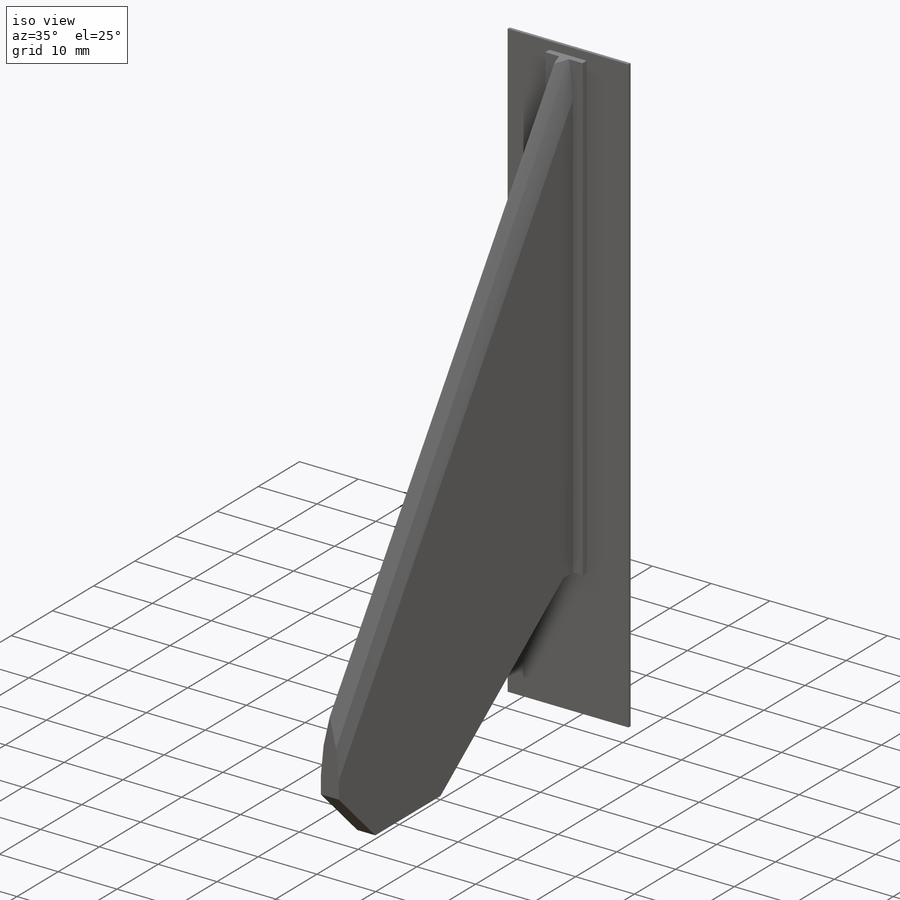
[diagram: iso view]
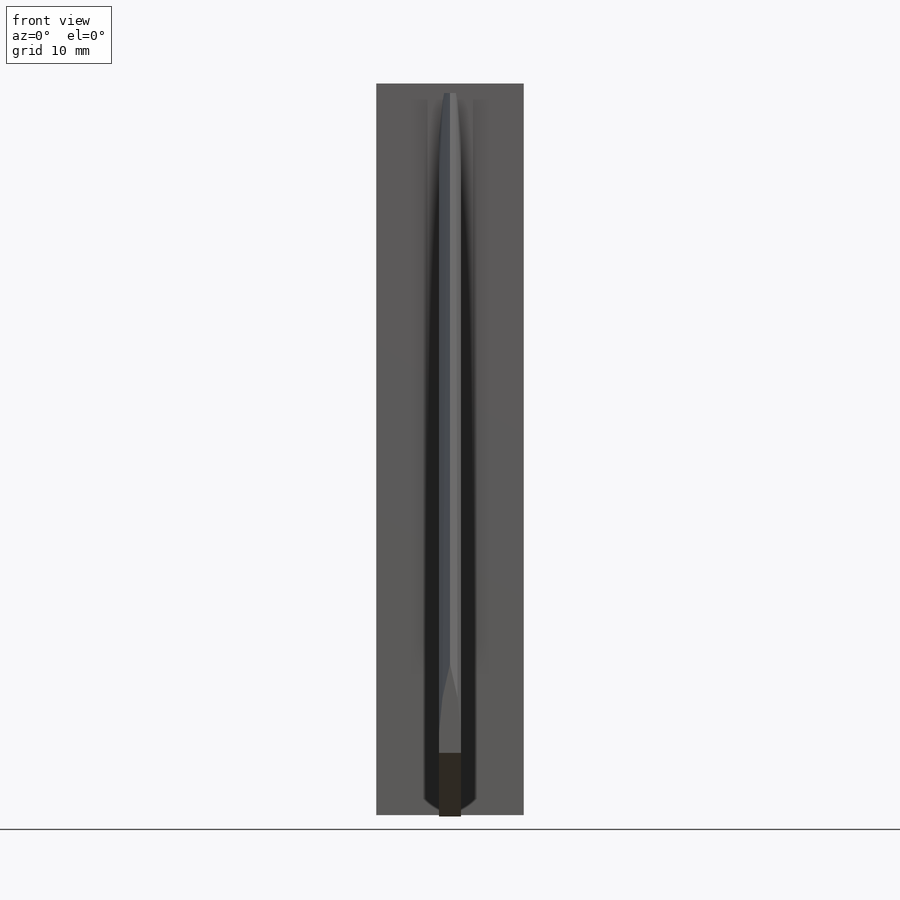
[diagram: front view]
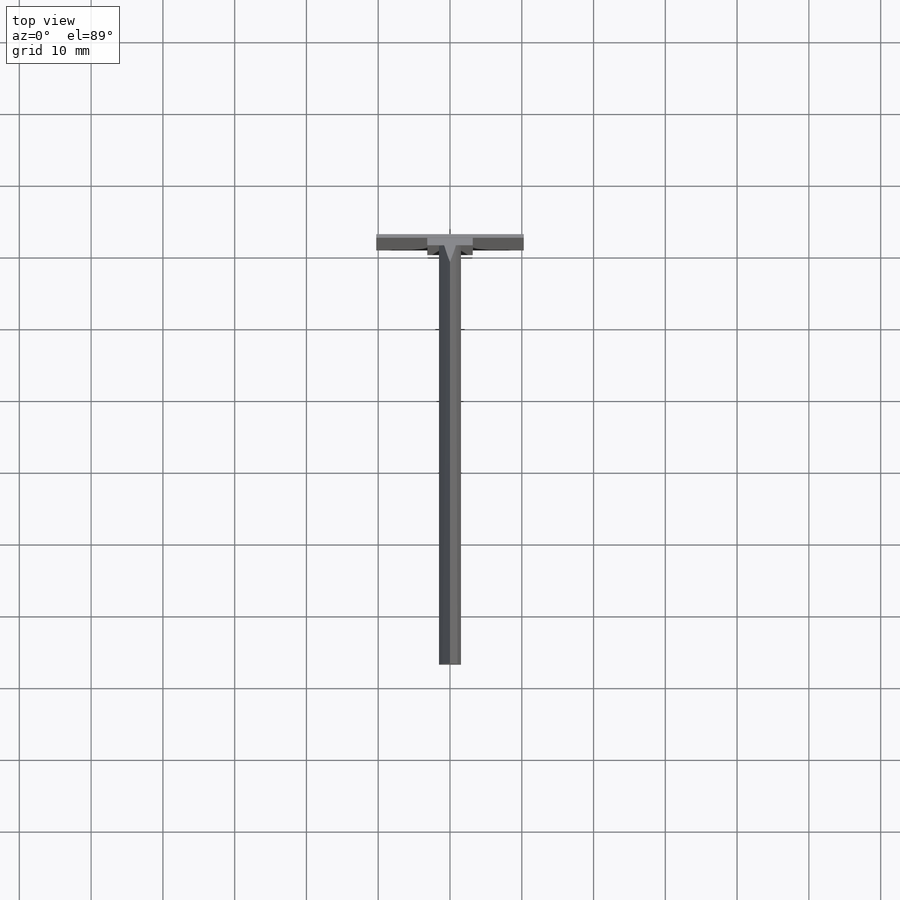
[diagram: top view]
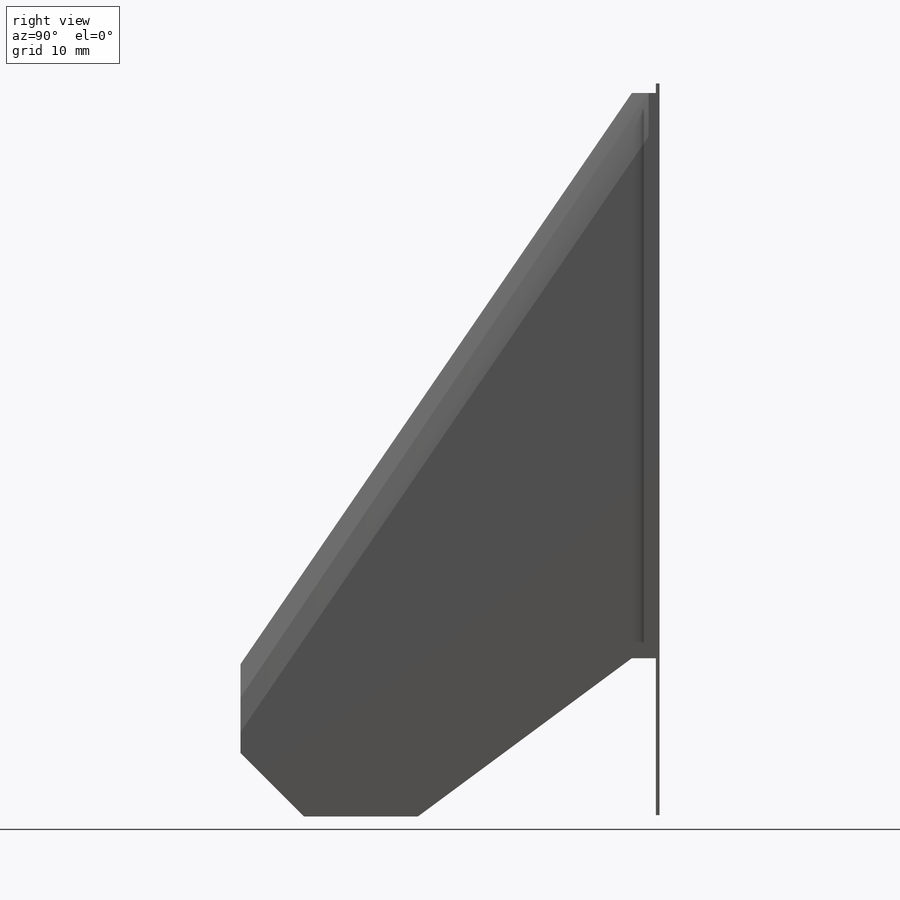
[diagram: right view]
SOLIDWORKS PART (.sldprt)
format: sldprt  version: not decoded by parser v0  size: 186,368 bytes
history: native  units: mm
features: sketch x5, extrude x3, material x1, sweep x1 (+11 scaffold rows collapsed)
feature tree (21):
  scaffold x11  (default folders/planes/origin — collapsed)
  material  "Material <not specified>"
  sketch  "Sketch1"  dims[c1.D1=~4.944588mm c2.D1=135.0deg c2.D2=78.74mm c2.D3=~12.365311mm c2.D4=~15.846717mm c2.D5=~79.561064mm c2.D6=~2.334295mm c2.D7=~2.334295mm c2.D8=~37.083935mm c2.D9=~37.083935mm c3.D9=~126.496245deg c3.D10=~15.846717mm c4.D10=~143.503755deg c5.D10=~8.870041mm c6.D10=135.0deg c7.D10=~96.453652mm]
  extrude  "Boss-Extrude1"  Depth=1.524mm
  sketch  "Sketch2"
  sketch  "Sketch3"
  sweep  "Cut-Sweep1"
  sketch  "Sketch5"  dims[D1=6.35mm]
  extrude  "Boss-Extrude2"  Depth=1.016mm
  sketch  "Sketch6"  dims[D1=~140.435673mm]
  extrude  "Boss-Extrude3"  Depth=0.508mm
decode coverage: 6 of 9 modeling features carry decoded parameters
note: ~ marks probable driven/reference dimensions
note: suppression state not decoded; provenance and decode notes live in map.json
